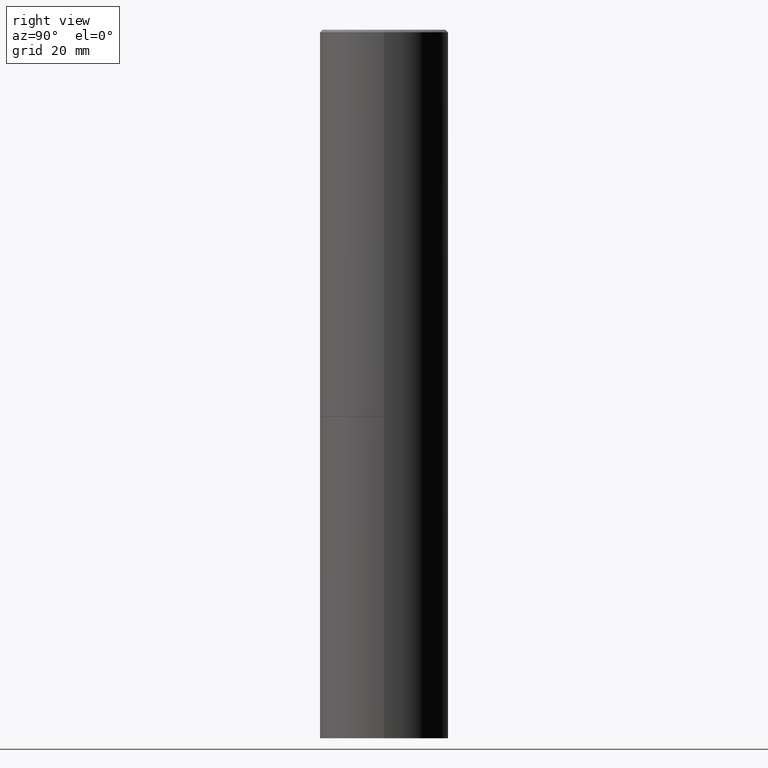
[diagram: clean part render]
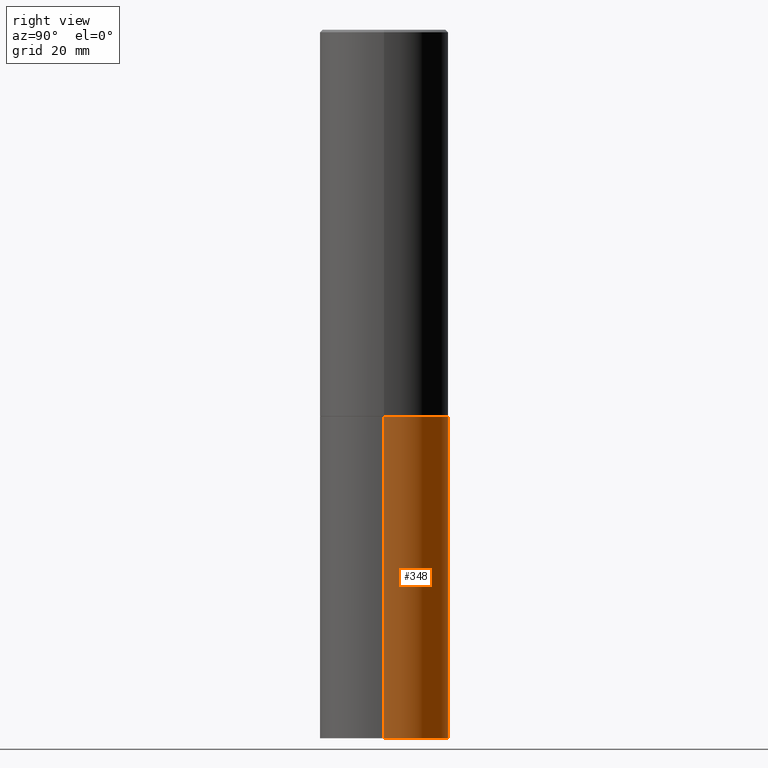
[diagram: same view with one face highlighted and labeled with its STEP entity id]
A machine part, right view. The second image highlights one B-rep face of the part: STEP entity #348.
In plain terms, the highlighted cylindrical surface (partial cylindrical patch) has radius 12.7 mm, axis along (-0, 0, 1).
Its self-contained STEP definition (entity closure, byte-faithful):
#12 = CARTESIAN_POINT ( 'NONE',  ( 1.345007843401824904E-28, -1.920314736363729972E-14, -5.500000000000000000 ) ) ;
#17 = CARTESIAN_POINT ( 'NONE',  ( 0.5000000000000000000, -2.269462870248043307E-14, -5.500000000000000000 ) ) ;
#22 = CARTESIAN_POINT ( 'NONE',  ( -0.5000000000000000000, 3.552713678800500929E-15, -2.459467545127452891E-29 ) ) ;
#36 = DIRECTION ( 'NONE',  ( 1.000000000000000000, -6.982962677686262766E-15, 0.000000000000000000 ) ) ;
#38 = VECTOR ( 'NONE', #88, 39.37007874015748143 ) ;
#45 = VERTEX_POINT ( 'NONE', #17 ) ;
#48 = EDGE_CURVE ( 'NONE', #325, #302, #161, .T. ) ;
#60 = ORIENTED_EDGE ( 'NONE', *, *, #290, .F. ) ;
#67 = CIRCLE ( 'NONE', #214, 0.5000000000000000000 ) ;
#83 = CARTESIAN_POINT ( 'NONE',  ( -0.5000000000000000000, -1.128608201128286632E-14, -5.500000000000000000 ) ) ;
#88 = DIRECTION ( 'NONE',  ( -2.445468806185136877E-29, 3.491481338843145188E-15, 1.000000000000000000 ) ) ;
#134 = EDGE_CURVE ( 'NONE', #45, #143, #67, .T. ) ;
#140 = ORIENTED_EDGE ( 'NONE', *, *, #354, .T. ) ;
#143 = VERTEX_POINT ( 'NONE', #83 ) ;
#144 = FACE_OUTER_BOUND ( 'NONE', #197, .T. ) ;
#161 = CIRCLE ( 'NONE', #267, 0.5000000000000000000 ) ;
#172 = CYLINDRICAL_SURFACE ( 'NONE', #366, 0.5000000000000000000 ) ;
#184 = DIRECTION ( 'NONE',  ( 1.000000000000000000, -6.982962677686266711E-15, 0.000000000000000000 ) ) ;
#197 = EDGE_LOOP ( 'NONE', ( #341, #140, #309, #60 ) ) ;
#198 = VECTOR ( 'NONE', #248, 39.37007874015748143 ) ;
#200 = CARTESIAN_POINT ( 'NONE',  ( -0.5000000000000000000, -1.128608201128286632E-14, -2.999999999999999556 ) ) ;
#208 = DIRECTION ( 'NONE',  ( -2.445468806185136597E-29, 3.491481338843145583E-15, 1.000000000000000000 ) ) ;
#214 = AXIS2_PLACEMENT_3D ( 'NONE', #12, #208, #36 ) ;
#230 = LINE ( 'NONE', #344, #38 ) ;
#242 = DIRECTION ( 'NONE',  ( -2.445468806185136597E-29, 3.491481338843145583E-15, 1.000000000000000000 ) ) ;
#248 = DIRECTION ( 'NONE',  ( -2.445468806185136877E-29, 3.491481338843145188E-15, 1.000000000000000000 ) ) ;
#257 = CARTESIAN_POINT ( 'NONE',  ( 0.5000000000000000000, -1.396592535537256813E-14, -2.999999999999999556 ) ) ;
#267 = AXIS2_PLACEMENT_3D ( 'NONE', #364, #242, #184 ) ;
#283 = DIRECTION ( 'NONE',  ( -2.445468806185136597E-29, 3.491481338843145583E-15, 1.000000000000000000 ) ) ;
#290 = EDGE_CURVE ( 'NONE', #45, #325, #230, .T. ) ;
#299 = LINE ( 'NONE', #22, #198 ) ;
#302 = VERTEX_POINT ( 'NONE', #200 ) ;
#309 = ORIENTED_EDGE ( 'NONE', *, *, #48, .F. ) ;
#325 = VERTEX_POINT ( 'NONE', #257 ) ;
#331 = DIRECTION ( 'NONE',  ( 1.000000000000000000, -6.982962677686266711E-15, 4.876176775795935793E-29 ) ) ;
#340 = CARTESIAN_POINT ( 'NONE',  ( 0.000000000000000000, 0.000000000000000000, 0.000000000000000000 ) ) ;
#341 = ORIENTED_EDGE ( 'NONE', *, *, #134, .T. ) ;
#344 = CARTESIAN_POINT ( 'NONE',  ( 0.5000000000000000000, -3.491481338843133355E-15, 2.438088387897967896E-29 ) ) ;
#348 = ADVANCED_FACE ( 'NONE', ( #144 ), #172, .T. ) ;
#354 = EDGE_CURVE ( 'NONE', #143, #302, #299, .T. ) ;
#364 = CARTESIAN_POINT ( 'NONE',  ( 7.336406418555408669E-29, -1.047444401652943478E-14, -2.999999999999999556 ) ) ;
#366 = AXIS2_PLACEMENT_3D ( 'NONE', #340, #283, #331 ) ;